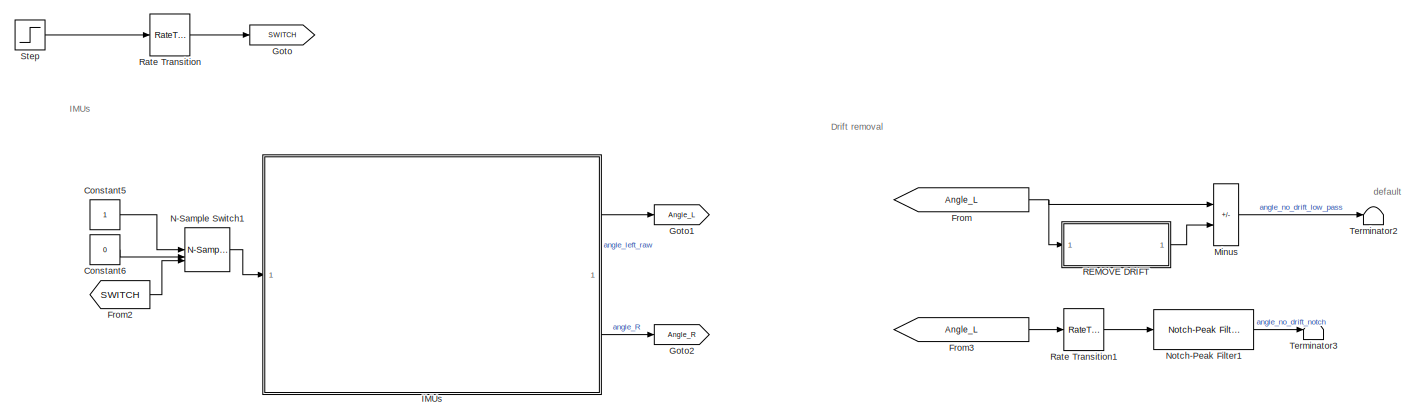
[diagram: root canvas - part 1/2, left side, full height]
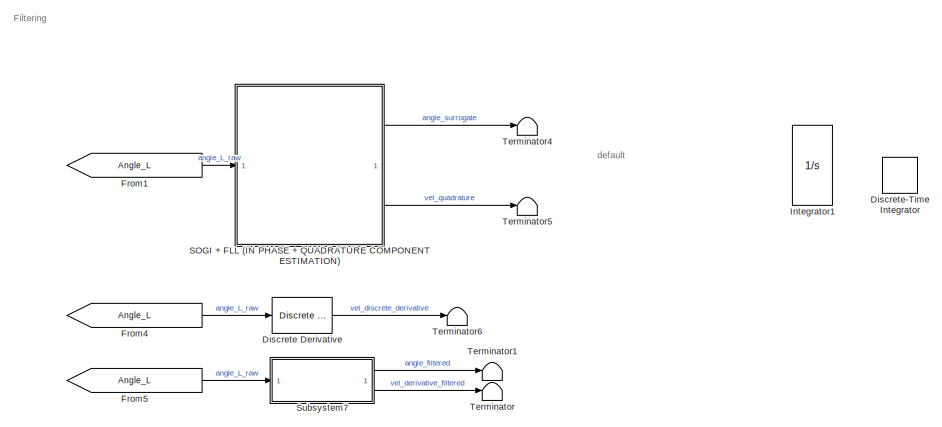
[diagram: root canvas - part 2/2, right side, full height]
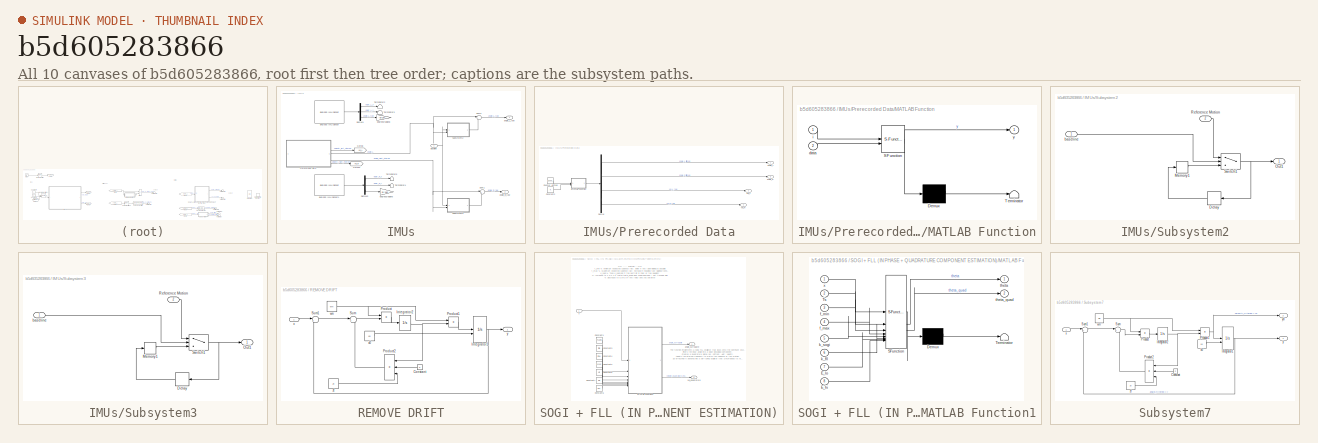
[diagram: thumbnail index - all 10 canvases of the model, root first then tree order]
MODEL slx_b5d605283866
KIND model
CONFIG AbsTol = auto
CONFIG EnableMultiTasking = off
CONFIG FixedStep = 0.01
CONFIG MaxStep = auto
CONFIG MinStep = auto
CONFIG RelTol = 1e-3
CONFIG SampleTimeConstraint = Unconstrained
CONFIG SolverName = FixedStepAuto
CONFIG StartTime = 0.0
CONFIG StopTime = simDuration
BLOCK [Constant] Constant5
BLOCK [Constant] Constant6
  Value = 0
BLOCK [Reference] Discrete Derivative  REF=simulink/Discrete/Discrete Derivative
  SourceBlock = simulink/Discrete/Discrete Derivative
  SourceType = Discrete Derivative
BLOCK [DiscreteIntegrator] Discrete-Time Integrator
  ICPrevOutput = DiscIntNeverNeededParam
  ICPrevScaledInput = DiscIntNeverNeededParam
  InitialConditionSetting = Auto
  SampleTime = -1
BLOCK [From] From
  GotoTag = Angle_L
BLOCK [From] From1
  GotoTag = Angle_L
BLOCK [From] From2
  GotoTag = SWITCH
BLOCK [From] From3
  GotoTag = Angle_L
BLOCK [From] From4
  GotoTag = Angle_L
BLOCK [From] From5
  GotoTag = Angle_L
BLOCK [Goto] Goto
  GotoTag = SWITCH
BLOCK [Goto] Goto1
  GotoTag = Angle_L
BLOCK [Goto] Goto2
  GotoTag = Angle_R
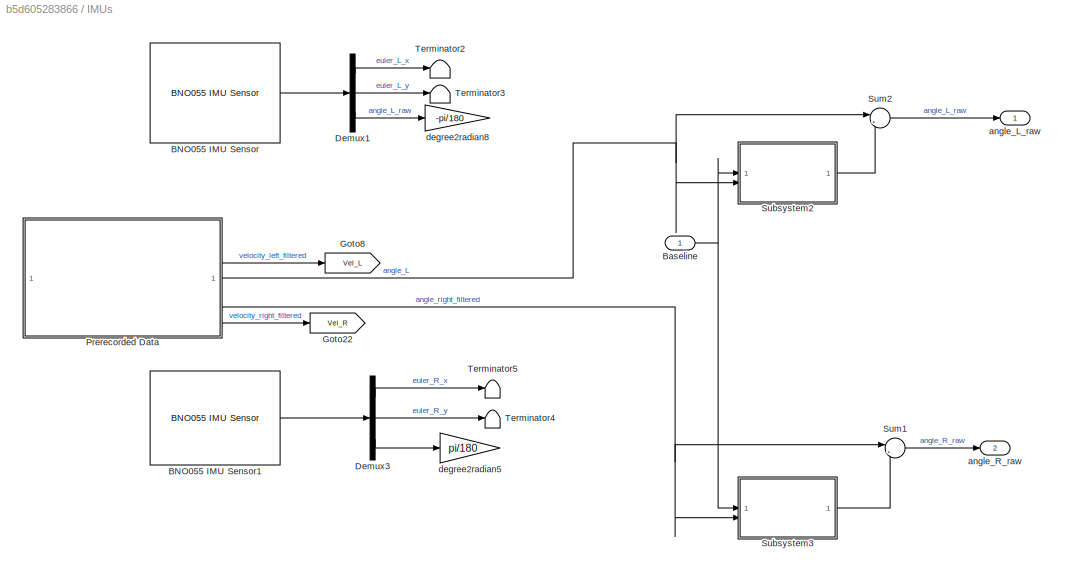
BLOCK [SubSystem] IMUs
BLOCK [Reference] IMUs/BNO055 IMU Sensor  REF=arduinosensorlib/BNO055 IMU Sensor
  SourceBlock = arduinosensorlib/BNO055 IMU Sensor
  SourceProductName = Sensors
  SourceType = BNO055
BLOCK [Reference] IMUs/BNO055 IMU Sensor1  REF=arduinosensorlib/BNO055 IMU Sensor
  SourceBlock = arduinosensorlib/BNO055 IMU Sensor
  SourceProductName = Sensors
  SourceType = BNO055
BLOCK [Inport] IMUs/Baseline
BLOCK [Demux] IMUs/Demux1
  Outputs = 3
BLOCK [Demux] IMUs/Demux3
  Outputs = 3
BLOCK [Goto] IMUs/Goto22
  GotoTag = Vel_R
BLOCK [Goto] IMUs/Goto8
  GotoTag = Vel_L
BLOCK [SubSystem] IMUs/Prerecorded Data
BLOCK [Constant] IMUs/Prerecorded Data/Constant2
  Value = K
BLOCK [Reference] IMUs/Prerecorded Data/Counter Limited  REF=simulink/Sources/Counter
Limited
  SourceBlock = simulink/Sources/Counter\nLimited
  SourceType = Counter Limited
BLOCK [Demux] IMUs/Prerecorded Data/Demux
BLOCK [SubSystem] IMUs/Prerecorded Data/MATLAB Function
  ErrorFcn = Stateflow.Translate.translate
  PermitHierarchicalResolution = ExplicitOnly
  SFBlockType = MATLAB Function
  TreatAsAtomicUnit = on
BLOCK [Demux] IMUs/Prerecorded Data/MATLAB Function/ Demux 
  Outputs = 1
BLOCK [S-Function] IMUs/Prerecorded Data/MATLAB Function/ SFunction 
  EnableBusSupport = on
  FunctionName = sf_sfun
  PortCounts = [2 2]
  SFcnIsStateOwnerBlock = off
  SFunctionDeploymentMode = off
  Tag = Stateflow S-Function 3
BLOCK [Terminator] IMUs/Prerecorded Data/MATLAB Function/ Terminator 
BLOCK [Inport] IMUs/Prerecorded Data/MATLAB Function/data
  Port = 2
BLOCK [Inport] IMUs/Prerecorded Data/MATLAB Function/i
BLOCK [Outport] IMUs/Prerecorded Data/MATLAB Function/y
BLOCK [Outport] IMUs/Prerecorded Data/angle_L
BLOCK [Outport] IMUs/Prerecorded Data/angle_R
  NameLocation = left
  Port = 3
BLOCK [Outport] IMUs/Prerecorded Data/vel_L
  Port = 2
BLOCK [Outport] IMUs/Prerecorded Data/vel_R
  Port = 4
BLOCK [SubSystem] IMUs/Subsystem2
BLOCK [Delay] IMUs/Subsystem2/Delay
  InputPortMap = u0
  NameLocation = top
BLOCK [Memory] IMUs/Subsystem2/Memory1
BLOCK [Outport] IMUs/Subsystem2/Out1
BLOCK [Inport] IMUs/Subsystem2/Reference Motion
  Port = 2
BLOCK [Switch] IMUs/Subsystem2/Switch1
  Criteria = u2 > Threshold
  InputSameDT = off
  SaturateOnIntegerOverflow = off
BLOCK [Inport] IMUs/Subsystem2/baseline
BLOCK [SubSystem] IMUs/Subsystem3
BLOCK [Delay] IMUs/Subsystem3/Delay
  InputPortMap = u0
  NameLocation = top
BLOCK [Memory] IMUs/Subsystem3/Memory1
BLOCK [Outport] IMUs/Subsystem3/Out1
BLOCK [Inport] IMUs/Subsystem3/Reference Motion
  Port = 2
BLOCK [Switch] IMUs/Subsystem3/Switch1
  Criteria = u2 > Threshold
  InputSameDT = off
  SaturateOnIntegerOverflow = off
BLOCK [Inport] IMUs/Subsystem3/baseline
BLOCK [Sum] IMUs/Sum1
  Inputs = |+-
BLOCK [Sum] IMUs/Sum2
  Inputs = |+-
BLOCK [Terminator] IMUs/Terminator2
BLOCK [Terminator] IMUs/Terminator3
BLOCK [Terminator] IMUs/Terminator4
BLOCK [Terminator] IMUs/Terminator5
BLOCK [Outport] IMUs/angle_L_raw
BLOCK [Outport] IMUs/angle_R_raw
  Port = 2
BLOCK [Gain] IMUs/degree2radian5
  Gain = pi/180
BLOCK [Gain] IMUs/degree2radian8
  Gain = -pi/180
BLOCK [Integrator] Integrator1
  InitialConditionSource = external
BLOCK [Sum] Minus
  IconShape = rectangular
  Inputs = +-
BLOCK [Reference] N-Sample Switch1  REF=dspswit3/N-Sample
Switch
  SourceBlock = dspswit3/N-Sample\nSwitch
  SourceType = N-Sample Switch
BLOCK [Reference] Notch-Peak Filter1  REF=dspfdesign/Notch-Peak Filter
  SourceBlock = dspfdesign/Notch-Peak Filter
  SourceType = dsp.simulink.NotchPeakFilter
BLOCK [SubSystem] REMOVE DRIFT
BLOCK [Constant] REMOVE DRIFT/Constant
  Value = 2
BLOCK [Integrator] REMOVE DRIFT/Integrator1
  InitialConditionSource = external
BLOCK [Integrator] REMOVE DRIFT/Integrator2
BLOCK [Product] REMOVE DRIFT/Product
  RndMeth = Zero
BLOCK [Product] REMOVE DRIFT/Product1
  RndMeth = Zero
BLOCK [Product] REMOVE DRIFT/Product2
  Inputs = 3
  RndMeth = Zero
BLOCK [Sum] REMOVE DRIFT/Sum
  Inputs = |+-
BLOCK [Sum] REMOVE DRIFT/Sum1
  Inputs = |+-
BLOCK [Constant] REMOVE DRIFT/wn
  Value = wn
BLOCK [Inport] REMOVE DRIFT/x
BLOCK [Constant] REMOVE DRIFT/x0
  Value = x0
BLOCK [Outport] REMOVE DRIFT/y
  VectorParamsAs1DForOutWhenUnconnected = off
BLOCK [Constant] REMOVE DRIFT/zt
  Value = zt
BLOCK [RateTransition] Rate Transition
  OutPortSampleTime = 0.01
BLOCK [RateTransition] Rate Transition1
  OutPortSampleTime = 0.01
BLOCK [SubSystem] SOGI + FLL (IN PHASE + QUADRATURE COMPONENT ESTIMATION)
BLOCK [Constant] SOGI + FLL (IN PHASE + QUADRATURE COMPONENT ESTIMATION)/Constant1
  Value = Tsamp
BLOCK [Constant] SOGI + FLL (IN PHASE + QUADRATURE COMPONENT ESTIMATION)/Constant2
  Value = ksogi
BLOCK [Constant] SOGI + FLL (IN PHASE + QUADRATURE COMPONENT ESTIMATION)/Constant3
  Value = fmin
BLOCK [Constant] SOGI + FLL (IN PHASE + QUADRATURE COMPONENT ESTIMATION)/Constant4
  Value = fmax
BLOCK [Constant] SOGI + FLL (IN PHASE + QUADRATURE COMPONENT ESTIMATION)/Constant5
  Value = kfll
BLOCK [Constant] SOGI + FLL (IN PHASE + QUADRATURE COMPONENT ESTIMATION)/Constant6
  Value = Ehi
BLOCK [Constant] SOGI + FLL (IN PHASE + QUADRATURE COMPONENT ESTIMATION)/Constant7
  Value = Elo
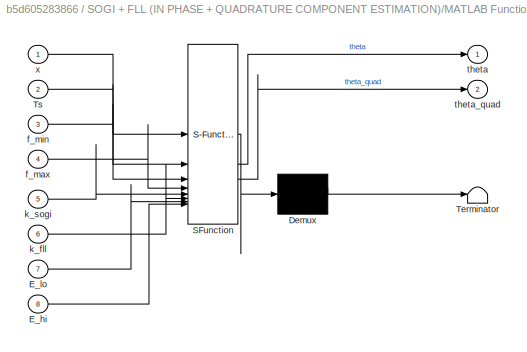
BLOCK [SubSystem] SOGI + FLL (IN PHASE + QUADRATURE COMPONENT ESTIMATION)/MATLAB Function1
  ErrorFcn = Stateflow.Translate.translate
  LibrarySourceBlock = simulink/User-Defined\nFunctions/MATLAB Function
  PermitHierarchicalResolution = ExplicitOnly
  SFBlockType = MATLAB Function
  TreatAsAtomicUnit = on
BLOCK [Demux] SOGI + FLL (IN PHASE + QUADRATURE COMPONENT ESTIMATION)/MATLAB Function1/ Demux 
  Outputs = 1
BLOCK [S-Function] SOGI + FLL (IN PHASE + QUADRATURE COMPONENT ESTIMATION)/MATLAB Function1/ SFunction 
  EnableBusSupport = on
  FunctionName = sf_sfun
  PortCounts = [8 3]
  SFcnIsStateOwnerBlock = off
  SFunctionDeploymentMode = off
  Tag = Stateflow S-Function 2
BLOCK [Terminator] SOGI + FLL (IN PHASE + QUADRATURE COMPONENT ESTIMATION)/MATLAB Function1/ Terminator 
BLOCK [Inport] SOGI + FLL (IN PHASE + QUADRATURE COMPONENT ESTIMATION)/MATLAB Function1/E_hi
  Port = 8
BLOCK [Inport] SOGI + FLL (IN PHASE + QUADRATURE COMPONENT ESTIMATION)/MATLAB Function1/E_lo
  Port = 7
BLOCK [Inport] SOGI + FLL (IN PHASE + QUADRATURE COMPONENT ESTIMATION)/MATLAB Function1/Ts
  Port = 2
BLOCK [Inport] SOGI + FLL (IN PHASE + QUADRATURE COMPONENT ESTIMATION)/MATLAB Function1/f_max
  Port = 4
BLOCK [Inport] SOGI + FLL (IN PHASE + QUADRATURE COMPONENT ESTIMATION)/MATLAB Function1/f_min
  Port = 3
BLOCK [Inport] SOGI + FLL (IN PHASE + QUADRATURE COMPONENT ESTIMATION)/MATLAB Function1/k_fll
  Port = 6
BLOCK [Inport] SOGI + FLL (IN PHASE + QUADRATURE COMPONENT ESTIMATION)/MATLAB Function1/k_sogi
  Port = 5
BLOCK [Outport] SOGI + FLL (IN PHASE + QUADRATURE COMPONENT ESTIMATION)/MATLAB Function1/theta
BLOCK [Outport] SOGI + FLL (IN PHASE + QUADRATURE COMPONENT ESTIMATION)/MATLAB Function1/theta_quad
  Port = 2
BLOCK [Inport] SOGI + FLL (IN PHASE + QUADRATURE COMPONENT ESTIMATION)/MATLAB Function1/x
BLOCK [Outport] SOGI + FLL (IN PHASE + QUADRATURE COMPONENT ESTIMATION)/angle_surrogate
BLOCK [Outport] SOGI + FLL (IN PHASE + QUADRATURE COMPONENT ESTIMATION)/vel_quadrature
  Port = 2
BLOCK [Inport] SOGI + FLL (IN PHASE + QUADRATURE COMPONENT ESTIMATION)/x
BLOCK [Step] Step
  SampleTime = 0
BLOCK [SubSystem] Subsystem7
BLOCK [Constant] Subsystem7/Constant
  Value = 2
BLOCK [Integrator] Subsystem7/Integrator1
  InitialConditionSource = external
BLOCK [Integrator] Subsystem7/Integrator2
BLOCK [Product] Subsystem7/Product
  RndMeth = Zero
BLOCK [Product] Subsystem7/Product1
  RndMeth = Zero
BLOCK [Product] Subsystem7/Product2
  Inputs = 3
  RndMeth = Zero
BLOCK [Sum] Subsystem7/Sum
  Inputs = |+-
BLOCK [Sum] Subsystem7/Sum1
  Inputs = |+-
BLOCK [Constant] Subsystem7/wn
  Value = wn
BLOCK [Inport] Subsystem7/x
BLOCK [Constant] Subsystem7/x0
  Value = x0
BLOCK [Outport] Subsystem7/y
  VectorParamsAs1DForOutWhenUnconnected = off
BLOCK [Outport] Subsystem7/yd
  Port = 2
  VectorParamsAs1DForOutWhenUnconnected = off
BLOCK [Constant] Subsystem7/zt
  Value = zt
BLOCK [Terminator] Terminator
BLOCK [Terminator] Terminator1
BLOCK [Terminator] Terminator2
BLOCK [Terminator] Terminator3
BLOCK [Terminator] Terminator4
BLOCK [Terminator] Terminator5
BLOCK [Terminator] Terminator6
ANNOTATION (root): Drift removal
ANNOTATION (root): Filtering
ANNOTATION (root): IMUs
ANNOTATION (root): default
ANNOTATION SOGI + FLL (IN PHASE + QUADRATURE COMPONENT ESTIMATION): %% ---- TUNING----%% f_min % Minimum expected cadence (Hz): lower if very slow walking is possible f_max % Maximum expected cadence (Hz): increase if including fast walking/running k_sogi % Tune k_sogi only if the portrait is ringy or too sluggish: % Increase to 1.2–1.4 if theta/theta_quad look underdamped / not tracking well % Decrease to 0.8–0.9 if very noisy and you see jitter k_fll % Frequency...<+380ch>
ANNOTATION SOGI + FLL (IN PHASE + QUADRATURE COMPONENT ESTIMATION): The function implements a SOGI-FLL oscillator that locks onto the dominant oscillation in the input angle signal . It does three main things: Filters the input angle into a clean sinusoidal component. Creates a quadrature signal (90° shifted) -> velocity . Adapts the internal frequency to match the cadence of the motion. So effectively it behaves like a self-tuning oscillator that synchronizes to ...<+17ch>
LINE Constant5:1 -> N-Sample Switch1:1
LINE Constant6:1 -> N-Sample Switch1:2
LINE Discrete Derivative:1 -> Terminator6:1
LINE From1:1 -> SOGI + FLL (IN PHASE + QUADRATURE COMPONENT ESTIMATION):1
LINE From2:1 -> N-Sample Switch1:3
LINE From3:1 -> Rate Transition1:1
LINE From4:1 -> Discrete Derivative:1
LINE From5:1 -> Subsystem7:1
NET From:1 -> Minus:1, REMOVE DRIFT:1
LINE IMUs/BNO055 IMU Sensor1:1 -> IMUs/Demux3:1
LINE IMUs/BNO055 IMU Sensor:1 -> IMUs/Demux1:1
NET IMUs/Baseline:1 -> IMUs/Subsystem2:1, IMUs/Subsystem3:1
LINE IMUs/Demux1:1 -> IMUs/Terminator2:1
LINE IMUs/Demux1:2 -> IMUs/Terminator3:1
LINE IMUs/Demux1:3 -> IMUs/degree2radian8:1
LINE IMUs/Demux3:1 -> IMUs/Terminator5:1
LINE IMUs/Demux3:2 -> IMUs/Terminator4:1
LINE IMUs/Demux3:3 -> IMUs/degree2radian5:1
LINE IMUs/Prerecorded Data/Constant2:1 -> IMUs/Prerecorded Data/MATLAB Function:2
LINE IMUs/Prerecorded Data/Counter Limited:1 -> IMUs/Prerecorded Data/MATLAB Function:1
LINE IMUs/Prerecorded Data/Demux:1 -> IMUs/Prerecorded Data/angle_L:1
LINE IMUs/Prerecorded Data/Demux:2 -> IMUs/Prerecorded Data/angle_R:1
LINE IMUs/Prerecorded Data/Demux:3 -> IMUs/Prerecorded Data/vel_L:1
LINE IMUs/Prerecorded Data/Demux:4 -> IMUs/Prerecorded Data/vel_R:1
LINE IMUs/Prerecorded Data/MATLAB Function:1 -> IMUs/Prerecorded Data/Demux:1
NET IMUs/Prerecorded Data:1 -> IMUs/Subsystem2:2, IMUs/Sum2:1
LINE IMUs/Prerecorded Data:2 -> IMUs/Goto8:1
NET IMUs/Prerecorded Data:3 -> IMUs/Subsystem3:2, IMUs/Sum1:1
LINE IMUs/Prerecorded Data:4 -> IMUs/Goto22:1
LINE IMUs/Subsystem2/Delay:1 -> IMUs/Subsystem2/Memory1:1
LINE IMUs/Subsystem2/Memory1:1 -> IMUs/Subsystem2/Switch1:3
LINE IMUs/Subsystem2/Reference Motion:1 -> IMUs/Subsystem2/Switch1:1
NET IMUs/Subsystem2/Switch1:1 -> IMUs/Subsystem2/Delay:1, IMUs/Subsystem2/Out1:1
LINE IMUs/Subsystem2/baseline:1 -> IMUs/Subsystem2/Switch1:2
LINE IMUs/Subsystem2:1 -> IMUs/Sum2:2
LINE IMUs/Subsystem3/Delay:1 -> IMUs/Subsystem3/Memory1:1
LINE IMUs/Subsystem3/Memory1:1 -> IMUs/Subsystem3/Switch1:3
LINE IMUs/Subsystem3/Reference Motion:1 -> IMUs/Subsystem3/Switch1:1
NET IMUs/Subsystem3/Switch1:1 -> IMUs/Subsystem3/Delay:1, IMUs/Subsystem3/Out1:1
LINE IMUs/Subsystem3/baseline:1 -> IMUs/Subsystem3/Switch1:2
LINE IMUs/Subsystem3:1 -> IMUs/Sum1:2
LINE IMUs/Sum1:1 -> IMUs/angle_R_raw:1
LINE IMUs/Sum2:1 -> IMUs/angle_L_raw:1
LINE IMUs:1 -> Goto1:1
LINE IMUs:2 -> Goto2:1
LINE Minus:1 -> Terminator2:1
LINE N-Sample Switch1:1 -> IMUs:1
LINE Notch-Peak Filter1:1 -> Terminator3:1
LINE REMOVE DRIFT/Constant:1 -> REMOVE DRIFT/Product2:2
NET REMOVE DRIFT/Integrator1:1 -> REMOVE DRIFT/Sum1:2, REMOVE DRIFT/y:1
NET REMOVE DRIFT/Integrator2:1 -> REMOVE DRIFT/Product1:2, REMOVE DRIFT/Product2:1
LINE REMOVE DRIFT/Product1:1 -> REMOVE DRIFT/Integrator1:1
LINE REMOVE DRIFT/Product2:1 -> REMOVE DRIFT/Sum:2
LINE REMOVE DRIFT/Product:1 -> REMOVE DRIFT/Integrator2:1
LINE REMOVE DRIFT/Sum1:1 -> REMOVE DRIFT/Sum:1
LINE REMOVE DRIFT/Sum:1 -> REMOVE DRIFT/Product:2
NET REMOVE DRIFT/wn:1 -> REMOVE DRIFT/Product1:1, REMOVE DRIFT/Product:1
LINE REMOVE DRIFT/x0:1 -> REMOVE DRIFT/Integrator1:2
LINE REMOVE DRIFT/x:1 -> REMOVE DRIFT/Sum1:1
LINE REMOVE DRIFT/zt:1 -> REMOVE DRIFT/Product2:3
LINE REMOVE DRIFT:1 -> Minus:2
LINE Rate Transition1:1 -> Notch-Peak Filter1:1
LINE Rate Transition:1 -> Goto:1
LINE SOGI + FLL (IN PHASE + QUADRATURE COMPONENT ESTIMATION)/Constant1:1 -> SOGI + FLL (IN PHASE + QUADRATURE COMPONENT ESTIMATION)/MATLAB Function1:2
LINE SOGI + FLL (IN PHASE + QUADRATURE COMPONENT ESTIMATION)/Constant2:1 -> SOGI + FLL (IN PHASE + QUADRATURE COMPONENT ESTIMATION)/MATLAB Function1:5
LINE SOGI + FLL (IN PHASE + QUADRATURE COMPONENT ESTIMATION)/Constant3:1 -> SOGI + FLL (IN PHASE + QUADRATURE COMPONENT ESTIMATION)/MATLAB Function1:3
LINE SOGI + FLL (IN PHASE + QUADRATURE COMPONENT ESTIMATION)/Constant4:1 -> SOGI + FLL (IN PHASE + QUADRATURE COMPONENT ESTIMATION)/MATLAB Function1:4
LINE SOGI + FLL (IN PHASE + QUADRATURE COMPONENT ESTIMATION)/Constant5:1 -> SOGI + FLL (IN PHASE + QUADRATURE COMPONENT ESTIMATION)/MATLAB Function1:6
LINE SOGI + FLL (IN PHASE + QUADRATURE COMPONENT ESTIMATION)/Constant6:1 -> SOGI + FLL (IN PHASE + QUADRATURE COMPONENT ESTIMATION)/MATLAB Function1:8
LINE SOGI + FLL (IN PHASE + QUADRATURE COMPONENT ESTIMATION)/Constant7:1 -> SOGI + FLL (IN PHASE + QUADRATURE COMPONENT ESTIMATION)/MATLAB Function1:7
LINE SOGI + FLL (IN PHASE + QUADRATURE COMPONENT ESTIMATION)/MATLAB Function1:1 -> SOGI + FLL (IN PHASE + QUADRATURE COMPONENT ESTIMATION)/angle_surrogate:1
LINE SOGI + FLL (IN PHASE + QUADRATURE COMPONENT ESTIMATION)/MATLAB Function1:2 -> SOGI + FLL (IN PHASE + QUADRATURE COMPONENT ESTIMATION)/vel_quadrature:1
LINE SOGI + FLL (IN PHASE + QUADRATURE COMPONENT ESTIMATION)/x:1 -> SOGI + FLL (IN PHASE + QUADRATURE COMPONENT ESTIMATION)/MATLAB Function1:1
LINE SOGI + FLL (IN PHASE + QUADRATURE COMPONENT ESTIMATION):1 -> Terminator4:1
LINE SOGI + FLL (IN PHASE + QUADRATURE COMPONENT ESTIMATION):2 -> Terminator5:1
LINE Step:1 -> Rate Transition:1
LINE Subsystem7/Constant:1 -> Subsystem7/Product2:2
NET Subsystem7/Integrator1:1 -> Subsystem7/Sum1:2, Subsystem7/y:1
NET Subsystem7/Integrator2:1 -> Subsystem7/Product1:2, Subsystem7/Product2:1
NET Subsystem7/Product1:1 -> Subsystem7/Integrator1:1, Subsystem7/yd:1
LINE Subsystem7/Product2:1 -> Subsystem7/Sum:2
LINE Subsystem7/Product:1 -> Subsystem7/Integrator2:1
LINE Subsystem7/Sum1:1 -> Subsystem7/Sum:1
LINE Subsystem7/Sum:1 -> Subsystem7/Product:2
NET Subsystem7/wn:1 -> Subsystem7/Product1:1, Subsystem7/Product:1
LINE Subsystem7/x0:1 -> Subsystem7/Integrator1:2
LINE Subsystem7/x:1 -> Subsystem7/Sum1:1
LINE Subsystem7/zt:1 -> Subsystem7/Product2:3
LINE Subsystem7:1 -> Terminator1:1
LINE Subsystem7:2 -> Terminator:1
note: NET lines group one-source signal fan-out (src -> all destinations, sorted); 1:1 wires keep LINE
CHART SOGI + FLL
(IN PHASE + QUADRATURE
COMPONENT ESTIMATION)/MATLAB Function1 states=1 transitions=1
  STATE_LABEL 'eML_blk_kernel()'
  STATE_LABEL 'SCRIPT:\nfunction [theta, theta_quad] = SOGI_FLL( ...\n    x, Ts, ...\n    f_min, f_max, ...     % cadence bounds (walking/running range)\n    k_sogi, k_fll, ...            % FLL adaptation speed (sensor/noise dependent)\n    E_lo, E_hi)           % lock thresholds (amplitude/noise dependent)\n\n\n% SOGI-FLL:\n%   SOGI = Second-Order Generalized Integrator (generates in-phase + quadrature)\n%   FLL  = Frequ...<+2985ch>'
CHART IMUs/Prerecorded Data/MATLAB Function states=1 transitions=1
  STATE_LABEL 'eML_blk_kernel()'
  STATE_LABEL 'SCRIPT:\nfunction y = imuPlayback(i, data)\n%#codegen\n% imuData must be defined as a Simulink.Parameter in the base workspace.\n% Example: imuData = Simulink.Parameter(yourIMUArray);\n% y will be a 1x4 row vector\nif i+1 <= size(data,1)\n    y = data(i+1,:);      % pick row i\nelse\n    y = data(end,:);    % after end, hold last value\nend\nend'
CHART  states=0 transitions=0
CHART  states=0 transitions=0
